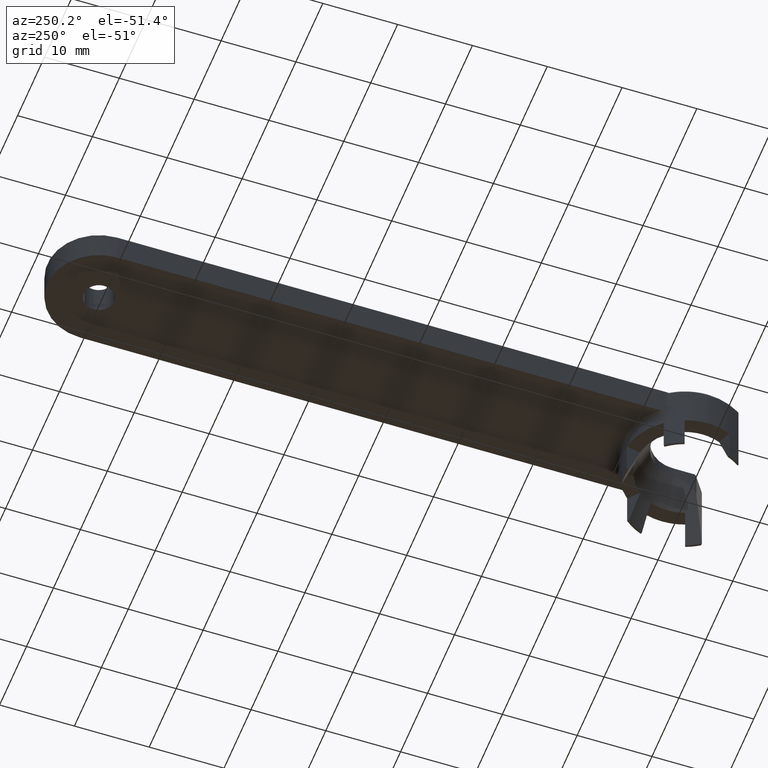
[diagram: clean part render]
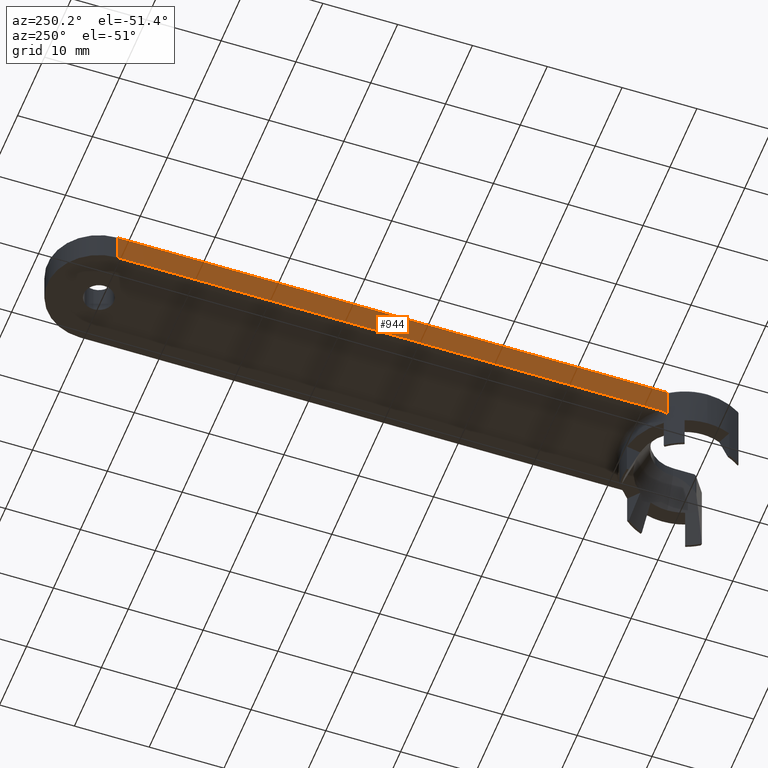
[diagram: same view with one face highlighted and labeled with its STEP entity id]
A machine part, auxiliary view. The second image highlights one B-rep face of the part: STEP entity #944.
In plain terms, the highlighted planar face has unit normal (-1, 0, 0).
Its self-contained STEP definition (entity closure, byte-faithful):
#5 = CARTESIAN_POINT ( 'NONE',  ( -6.850000000000733300, 5.254423152498204400, -4.072947377162116700 ) ) ;
#14 = CARTESIAN_POINT ( 'NONE',  ( -6.850000000000000500, 78.33195793219007900, -2.000000000000000000 ) ) ;
#34 = CARTESIAN_POINT ( 'NONE',  ( -6.849999999999985400, 4.752669607041143600, -0.1107333796613449000 ) ) ;
#44 = VECTOR ( 'NONE', #1659, 1000.000000000000000 ) ;
#125 = ORIENTED_EDGE ( 'NONE', *, *, #1428, .T. ) ;
#166 = CARTESIAN_POINT ( 'NONE',  ( -6.850000000000001400, 4.861841215095568100, -4.411172688643040900 ) ) ;
#187 = ORIENTED_EDGE ( 'NONE', *, *, #576, .T. ) ;
#223 = CARTESIAN_POINT ( 'NONE',  ( -6.849999999999983700, 4.832323553000252400, -0.1901260062277579900 ) ) ;
#251 = B_SPLINE_CURVE_WITH_KNOTS ( 'NONE', 3,
 ( #861, #1060, #223, #34, #1431, #1763, #318, #562 ),
 .UNSPECIFIED., .F., .F.,
 ( 4, 2, 2, 4 ),
 ( 2.887748876678590800E-013, 0.0001678969008468303300, 0.0003357938014048857300, 0.0006715876025209989900 ),
 .UNSPECIFIED. ) ;
#264 = CARTESIAN_POINT ( 'NONE',  ( -6.850000000000081400, 5.508122151782445500, -4.009172892914958400 ) ) ;
#291 = CARTESIAN_POINT ( 'NONE',  ( -6.849999999605629800, 5.682209071596507700, -4.000000000435521800 ) ) ;
#298 = EDGE_LOOP ( 'NONE', ( #535, #1144, #1527, #1106, #187, #125 ) ) ;
#318 = CARTESIAN_POINT ( 'NONE',  ( -6.849999999999995200, 4.435505288075551000, -1.370561432594907800E-009 ) ) ;
#372 = CARTESIAN_POINT ( 'NONE',  ( -6.850000000000000500, 78.33195793500000500, -4.527000000000000100 ) ) ;
#395 = VERTEX_POINT ( 'NONE', #1057 ) ;
#517 = LINE ( 'NONE', #1594, #916 ) ;
#531 = DIRECTION ( 'NONE',  ( 0.0000000000000000000, 1.000000000000000000, 0.0000000000000000000 ) ) ;
#535 = ORIENTED_EDGE ( 'NONE', *, *, #726, .T. ) ;
#562 = CARTESIAN_POINT ( 'NONE',  ( -6.850000000012268100, 4.322904132930053000, 1.543469039893453600E-010 ) ) ;
#576 = EDGE_CURVE ( 'NONE', #1267, #395, #1326, .T. ) ;
#726 = EDGE_CURVE ( 'NONE', #1569, #1792, #1195, .T. ) ;
#800 = CARTESIAN_POINT ( 'NONE',  ( -6.849999999478879600, 4.861841215747318800, -5.400000000000000400 ) ) ;
#830 = CARTESIAN_POINT ( 'NONE',  ( -6.849999999999999600, 78.33195793359504900, -4.000000000677499800 ) ) ;
#856 = VERTEX_POINT ( 'NONE', #1440 ) ;
#861 = CARTESIAN_POINT ( 'NONE',  ( -6.849999999739439200, 4.861841215399237200, -0.2999999997764299400 ) ) ;
#877 = DIRECTION ( 'NONE',  ( 0.0000000000000000000, -1.000000000000000000, 0.0000000000000000000 ) ) ;
#878 = VERTEX_POINT ( 'NONE', #1199 ) ;
#916 = VECTOR ( 'NONE', #531, 1000.000000000000000 ) ;
#933 = VECTOR ( 'NONE', #877, 1000.000000000000000 ) ;
#944 = ADVANCED_FACE ( 'NONE', ( #1128 ), #1111, .T. ) ;
#1057 = CARTESIAN_POINT ( 'NONE',  ( -6.849999999605629800, 5.682209071596507700, -4.000000000435521800 ) ) ;
#1060 = CARTESIAN_POINT ( 'NONE',  ( -6.850000000000001400, 4.861841214914806900, -0.2428762087931888000 ) ) ;
#1106 = ORIENTED_EDGE ( 'NONE', *, *, #1423, .T. ) ;
#1111 = PLANE ( 'NONE',  #1571 ) ;
#1112 = EDGE_CURVE ( 'NONE', #878, #856, #517, .T. ) ;
#1128 = FACE_OUTER_BOUND ( 'NONE', #298, .T. ) ;
#1144 = ORIENTED_EDGE ( 'NONE', *, *, #1517, .T. ) ;
#1148 = CARTESIAN_POINT ( 'NONE',  ( -6.850000000000000500, 41.10540386449999800, -4.000000001354999700 ) ) ;
#1195 = LINE ( 'NONE', #800, #44 ) ;
#1199 = CARTESIAN_POINT ( 'NONE',  ( -6.850000000012268100, 4.322904132930053000, 1.543469039893453600E-010 ) ) ;
#1255 = B_SPLINE_CURVE_WITH_KNOTS ( 'NONE', 3,
 ( #291, #1574, #264, #1475, #5, #1596, #1756, #1468, #166, #1732 ),
 .UNSPECIFIED., .F., .F.,
 ( 4, 2, 2, 2, 4 ),
 ( 1.734723475976807100E-018, 0.0002596883900313904300, 0.0005193767800627791200, 0.0007790651700941678200, 0.001038753560125556500 ),
 .UNSPECIFIED. ) ;
#1267 = VERTEX_POINT ( 'NONE', #830 ) ;
#1326 = LINE ( 'NONE', #1148, #933 ) ;
#1373 = LINE ( 'NONE', #14, #1701 ) ;
#1401 = DIRECTION ( 'NONE',  ( 0.0000000000000000000, -1.000000000000000000, 0.0000000000000000000 ) ) ;
#1423 = EDGE_CURVE ( 'NONE', #856, #1267, #1373, .T. ) ;
#1428 = EDGE_CURVE ( 'NONE', #395, #1569, #1255, .T. ) ;
#1431 = CARTESIAN_POINT ( 'NONE',  ( -6.849999999988644300, 4.703004633988912900, -0.08173695579881892800 ) ) ;
#1440 = CARTESIAN_POINT ( 'NONE',  ( -6.850000000122798300, 78.33195793359504900, 0.0000000000000000000 ) ) ;
#1468 = CARTESIAN_POINT ( 'NONE',  ( -6.850000000000015600, 4.904806245279015500, -4.328055366598210400 ) ) ;
#1475 = CARTESIAN_POINT ( 'NONE',  ( -6.850000000000081400, 5.338689695307929900, -4.045431181094276200 ) ) ;
#1517 = EDGE_CURVE ( 'NONE', #1792, #878, #251, .T. ) ;
#1527 = ORIENTED_EDGE ( 'NONE', *, *, #1112, .T. ) ;
#1534 = CARTESIAN_POINT ( 'NONE',  ( -6.849999999739441000, 4.861841215596255600, -4.500000000667159700 ) ) ;
#1543 = DIRECTION ( 'NONE',  ( -1.000000000000000000, 0.0000000000000000000, 0.0000000000000000000 ) ) ;
#1569 = VERTEX_POINT ( 'NONE', #1534 ) ;
#1571 = AXIS2_PLACEMENT_3D ( 'NONE', #372, #1543, #1401 ) ;
#1574 = CARTESIAN_POINT ( 'NONE',  ( -6.850000000000001400, 5.594377458330464800, -4.000000000263328000 ) ) ;
#1594 = CARTESIAN_POINT ( 'NONE',  ( -6.850000000245598700, 40.39246102149999700, 0.0000000000000000000 ) ) ;
#1596 = CARTESIAN_POINT ( 'NONE',  ( -6.850000000000733300, 5.097535655094159100, -4.149416283189197900 ) ) ;
#1659 = DIRECTION ( 'NONE',  ( 0.0000000000000000000, 0.0000000000000000000, 1.000000000000000000 ) ) ;
#1662 = DIRECTION ( 'NONE',  ( -0.0000000000000000000, -0.0000000000000000000, -1.000000000000000000 ) ) ;
#1701 = VECTOR ( 'NONE', #1662, 1000.000000000000000 ) ;
#1713 = CARTESIAN_POINT ( 'NONE',  ( -6.849999999739439200, 4.861841215399237200, -0.2999999997764299400 ) ) ;
#1732 = CARTESIAN_POINT ( 'NONE',  ( -6.849999999739441000, 4.861841215596255600, -4.500000000667159700 ) ) ;
#1756 = CARTESIAN_POINT ( 'NONE',  ( -6.850000000000014700, 5.023027684498560900, -4.198865486146816700 ) ) ;
#1763 = CARTESIAN_POINT ( 'NONE',  ( -6.849999999988643400, 4.548634380750330700, -0.01666168055517474800 ) ) ;
#1792 = VERTEX_POINT ( 'NONE', #1713 ) ;